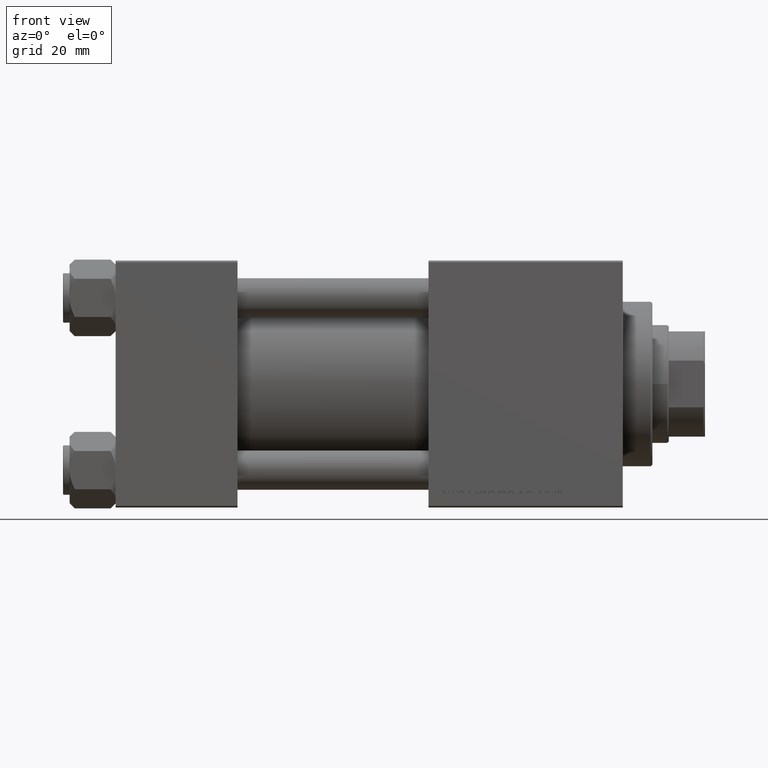
[diagram: clean part render]
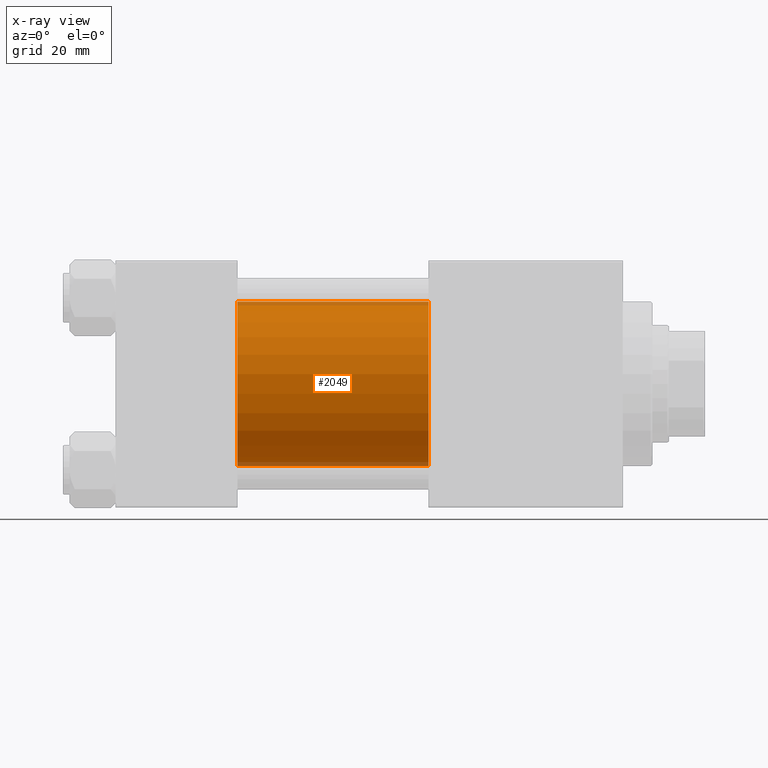
[diagram: x-ray — body ghosted, one internal face saturated and labeled with its STEP entity id]
A machine part, front view, then the same camera in x-ray: the body is ghosted and one INTERNAL B-rep face — a face not visible from any outside direction — is saturated and labeled: STEP entity #2049.
In plain terms, the highlighted cylindrical surface (partial cylindrical patch) has radius 25 mm, axis along (-1, -0, -0).
Its self-contained STEP definition (entity closure, byte-faithful):
#133 = VECTOR ( 'NONE', #5699, 1000.000000000000000 ) ;
#2002 = DIRECTION ( 'NONE',  ( 0.000000000000000000, 0.000000000000000000, 1.000000000000000000 ) ) ;
#2049 = ADVANCED_FACE ( 'NONE', ( #25110 ), #33231, .F. ) ;
#2555 = VERTEX_POINT ( 'NONE', #11765 ) ;
#2755 = CARTESIAN_POINT ( 'NONE',  ( 95.00000000000000000, -2.602085213965210642E-15, 0.000000000000000000 ) ) ;
#4002 = AXIS2_PLACEMENT_3D ( 'NONE', #40095, #9350, #12919 ) ;
#4131 = EDGE_LOOP ( 'NONE', ( #11167, #26944, #42556, #15643 ) ) ;
#5699 = DIRECTION ( 'NONE',  ( -1.000000000000000000, -0.000000000000000000, -0.000000000000000000 ) ) ;
#7197 = DIRECTION ( 'NONE',  ( 1.000000000000000000, 0.000000000000000000, 0.000000000000000000 ) ) ;
#7692 = VERTEX_POINT ( 'NONE', #13073 ) ;
#9350 = DIRECTION ( 'NONE',  ( 1.000000000000000000, 0.000000000000000000, 0.000000000000000000 ) ) ;
#11167 = ORIENTED_EDGE ( 'NONE', *, *, #27144, .T. ) ;
#11514 = DIRECTION ( 'NONE',  ( 0.000000000000000000, 0.000000000000000000, -1.000000000000000000 ) ) ;
#11765 = CARTESIAN_POINT ( 'NONE',  ( 95.00000000000000000, 4.595317839031718093E-16, -25.00000000000000000 ) ) ;
#12919 = DIRECTION ( 'NONE',  ( 0.000000000000000000, 0.000000000000000000, -1.000000000000000000 ) ) ;
#13073 = CARTESIAN_POINT ( 'NONE',  ( 95.00000000000000000, -2.602085213965210642E-15, 25.00000000000000000 ) ) ;
#13292 = AXIS2_PLACEMENT_3D ( 'NONE', #38691, #7197, #11514 ) ;
#15643 = ORIENTED_EDGE ( 'NONE', *, *, #37303, .F. ) ;
#17348 = CIRCLE ( 'NONE', #13292, 25.00000000000000000 ) ;
#20279 = CARTESIAN_POINT ( 'NONE',  ( 37.00000000000000000, 4.595317839031718093E-16, -25.00000000000000000 ) ) ;
#21621 = CARTESIAN_POINT ( 'NONE',  ( 37.00000000000000000, -2.602085213965210642E-15, 25.00000000000000000 ) ) ;
#21840 = CIRCLE ( 'NONE', #4002, 25.00000000000000000 ) ;
#22294 = VERTEX_POINT ( 'NONE', #20279 ) ;
#23623 = VECTOR ( 'NONE', #33764, 1000.000000000000000 ) ;
#25110 = FACE_OUTER_BOUND ( 'NONE', #4131, .T. ) ;
#26944 = ORIENTED_EDGE ( 'NONE', *, *, #38451, .T. ) ;
#27144 = EDGE_CURVE ( 'NONE', #7692, #2555, #17348, .T. ) ;
#27818 = VERTEX_POINT ( 'NONE', #21621 ) ;
#32887 = CARTESIAN_POINT ( 'NONE',  ( 95.00000000000000000, 4.595317839031718093E-16, -25.00000000000000000 ) ) ;
#33016 = LINE ( 'NONE', #44927, #23623 ) ;
#33116 = EDGE_CURVE ( 'NONE', #27818, #22294, #21840, .T. ) ;
#33231 = CYLINDRICAL_SURFACE ( 'NONE', #42639, 25.00000000000000000 ) ;
#33764 = DIRECTION ( 'NONE',  ( -1.000000000000000000, -0.000000000000000000, -0.000000000000000000 ) ) ;
#37177 = LINE ( 'NONE', #32887, #133 ) ;
#37303 = EDGE_CURVE ( 'NONE', #7692, #27818, #33016, .T. ) ;
#38451 = EDGE_CURVE ( 'NONE', #2555, #22294, #37177, .T. ) ;
#38691 = CARTESIAN_POINT ( 'NONE',  ( 95.00000000000000000, -2.602085213965210642E-15, 0.000000000000000000 ) ) ;
#40095 = CARTESIAN_POINT ( 'NONE',  ( 37.00000000000000000, -2.602085213965210642E-15, 0.000000000000000000 ) ) ;
#42556 = ORIENTED_EDGE ( 'NONE', *, *, #33116, .F. ) ;
#42639 = AXIS2_PLACEMENT_3D ( 'NONE', #2755, #49436, #2002 ) ;
#44927 = CARTESIAN_POINT ( 'NONE',  ( 95.00000000000000000, -2.602085213965210642E-15, 25.00000000000000000 ) ) ;
#49436 = DIRECTION ( 'NONE',  ( -1.000000000000000000, -0.000000000000000000, -0.000000000000000000 ) ) ;